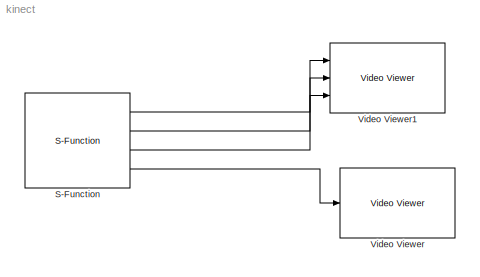
MODEL kinect
KIND model
BLOCK [S-Function] S-Function
  EnableBusSupport = off
  FunctionName = fromKinect17
  Ports = [0, 4]
  SID = 4
BLOCK [Reference] Video Viewer  REF=vipsnks/Video Viewer
  AxisZoom = on
  FigPos = [793 535 410 300]
  OpenAtMdlStart = on
  Ports = [1]
  SID = 13
  SourceBlock = vipsnks/Video Viewer
  SourceType = Video Viewer
  UserData = DataTag0
  UserDataPersistent = on
  colormapValue = gray(256)
  imagePorts = One multidimensional signal
  inputType = Obsolete7b
  maxInputVal = 255
  minInputVal = 0
  specRange = off
  trueSizedOnce = off
  useColorMap = off
BLOCK [Reference] Video Viewer1  REF=vipsnks/Video Viewer
  AxisZoom = on
  FigPos = [247 630 410 300]
  OpenAtMdlStart = on
  Ports = [3]
  SID = 15
  SourceBlock = vipsnks/Video Viewer
  SourceType = Video Viewer
  UserData = DataTag1
  UserDataPersistent = on
  colormapValue = gray(256)
  imagePorts = Separate color signals
  inputType = Obsolete7b
  maxInputVal = 255
  minInputVal = 0
  specRange = off
  trueSizedOnce = off
  useColorMap = off
LINE S-Function:1 -> Video Viewer1:1
LINE S-Function:2 -> Video Viewer1:2
LINE S-Function:3 -> Video Viewer1:3
LINE S-Function:4 -> Video Viewer:1
